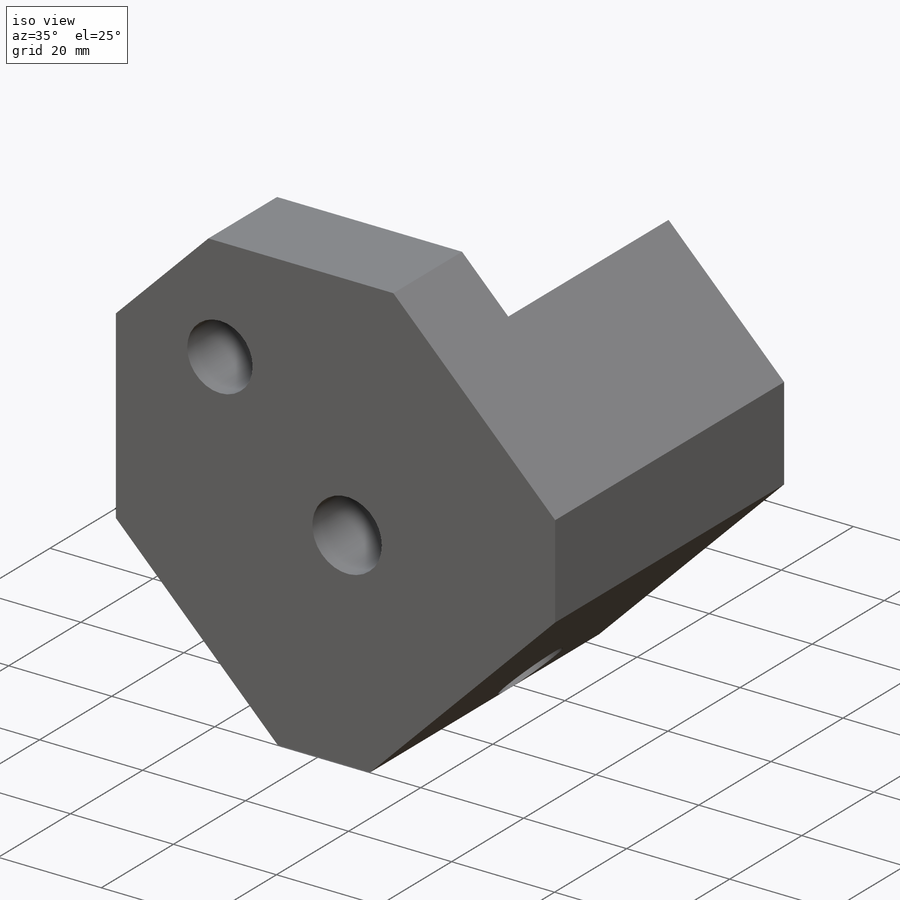
[diagram: iso view]
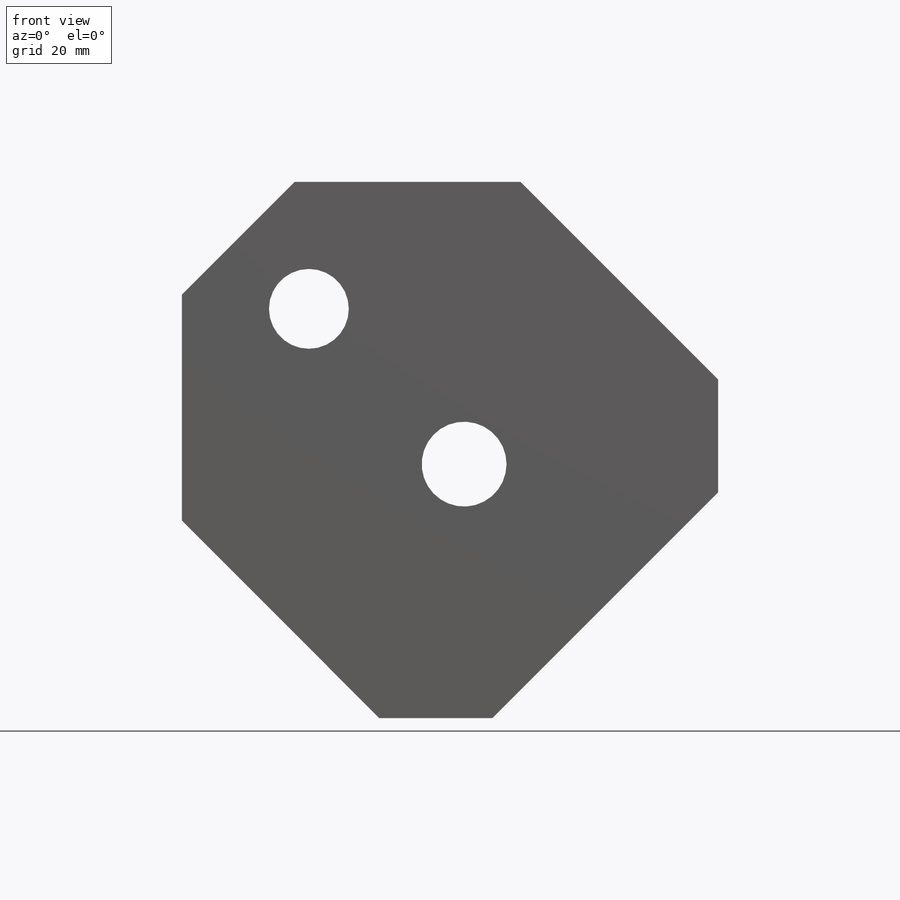
[diagram: front view]
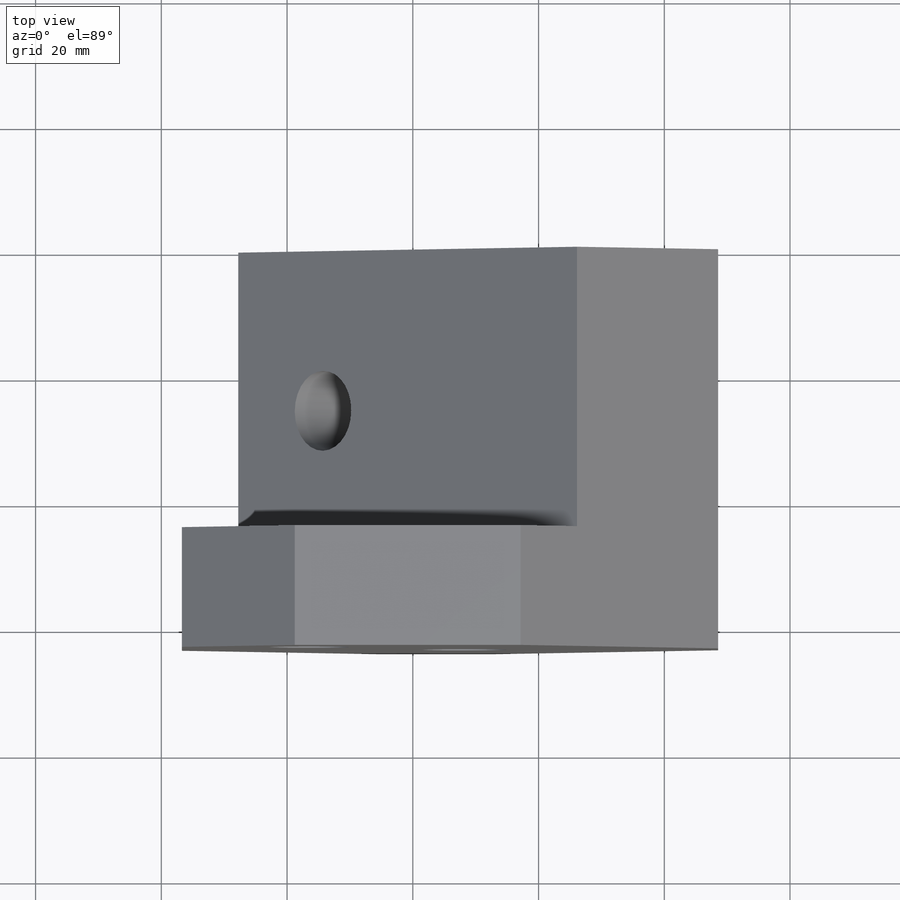
[diagram: top view]
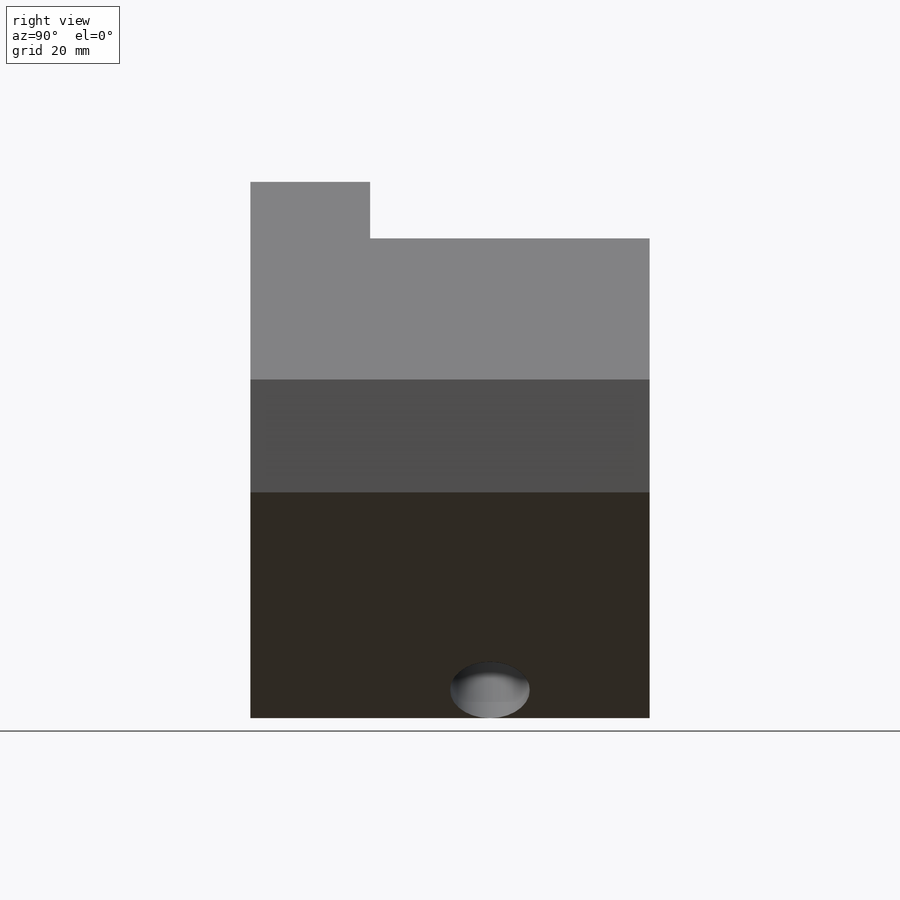
[diagram: right view]
SOLIDWORKS PART (.sldprt)
format: sldprt  version: not decoded by parser v0  size: 527,872 bytes
history: native  units: mm
features: sketch x8, hole x3, material x1, extrude x1, cut_extrude x1 (+14 scaffold rows collapsed)
feature tree (28):
  scaffold x14  (default folders/planes/origin — collapsed)
  material  "AISI 1018 Steel, Cold Rolled"
  sketch  "Sketch1"  dims[c1.D4=12.7mm c1.D5=25.4mm c1.D3=19.05mm c1.D2=6.35mm c2.D4=6.35mm c2.D8=19.05mm c2.D5=~22.223524mm c3.D5=~0.026647deg c4.D5=~38.105908mm c5.D5=~0.026647deg c6.D5=76.2mm c6.D6=38.1mm c6.D4=25.4mm c6.D7=25.4mm c6.D1=82.55mm c6.D2=31.75mm c6.D9=12.7mm c6.D10=12.7mm c7.D1=25.4mm c7.D2=25.4mm c7.D3=38.1mm c7.D4=3.175mm c7.D5=3.9878mm c8.D4=38.1mm c8.D6=~134.984802mm]
  extrude  "Base-Extrude"  Depth=63.5mm
  hole  "1/2-20 Tapped Hole1"  Diameter=12.7mm Depth=63.5mm
  sketch  "Sketch4"  dims[c1.D1=12.7mm c1.D2=12.7mm c1.D3=~130.26006mm c2.D1=12.7mm c2.D2=12.7mm c3.D1=38.1mm c3.D2=15.875mm]
  sketch  "Sketch3"  dims[hole-wizard template sketch: 60 standard entries collapsed; hole parameters kept: c18.Thru Tap Drill Depth=63.5mm]
  hole  "17/32 (0.53125) Diameter Hole2"  Diameter=13.49375mm Depth=63.5mm
  sketch  "Sketch8"  dims[D1=38.1mm D2=50.8mm]
  sketch  "Sketch7"  dims[hole-wizard template sketch: 59 standard entries collapsed; hole parameters kept: c18.Thru Hole Dia.=~13.49375mm c18.Thru Hole Depth=63.5mm]
  sketch  "Sketch10"  dims[D1=19.05mm D2=44.45mm]
  cut_extrude  "Cut-Extrude1"  [1 undecoded]
  hole  "1/2-20 Tapped Hole3"  Diameter=12.7mm Depth=95.252953mm
  sketch  "Sketch12"  dims[D1=19.05mm D2=25.4mm]
  sketch  "Sketch11"  dims[hole-wizard template sketch: 60 standard entries collapsed; hole parameters kept: c18.Thru Tap Drill Depth=~95.252953mm]
decode coverage: 12 of 13 modeling features carry decoded parameters
note: ~ marks probable driven/reference dimensions
note: 1 parameter value undecoded
note: suppression state not decoded; provenance and decode notes live in map.json
